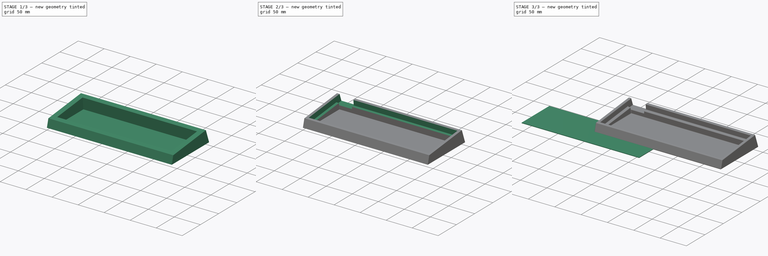
[diagram: build sequence overview — one tinted view per stage of 3, left to right]
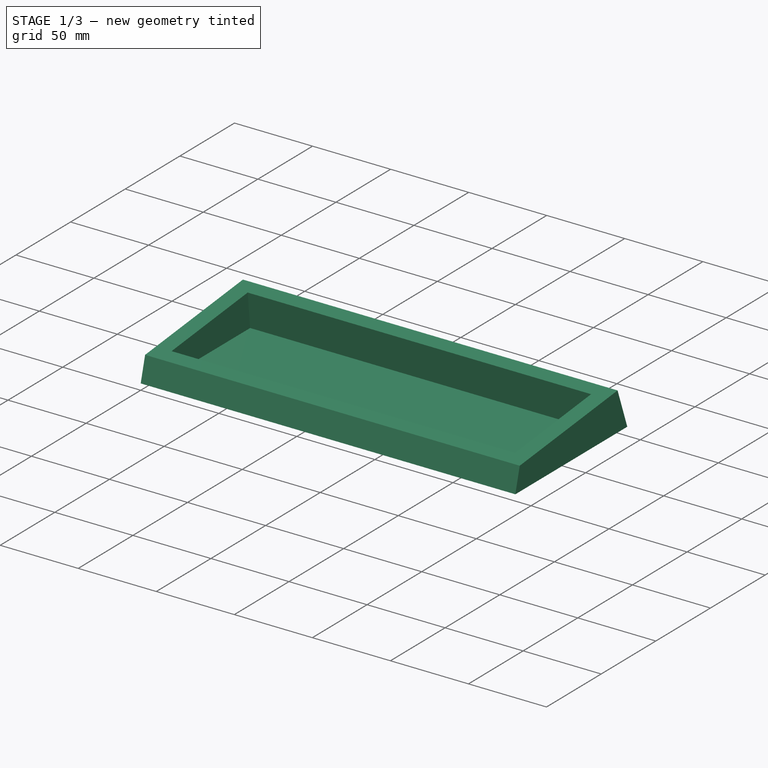
[diagram: stage 1 of 3 — iso view after this stage's code; geometry added in this stage tinted green]
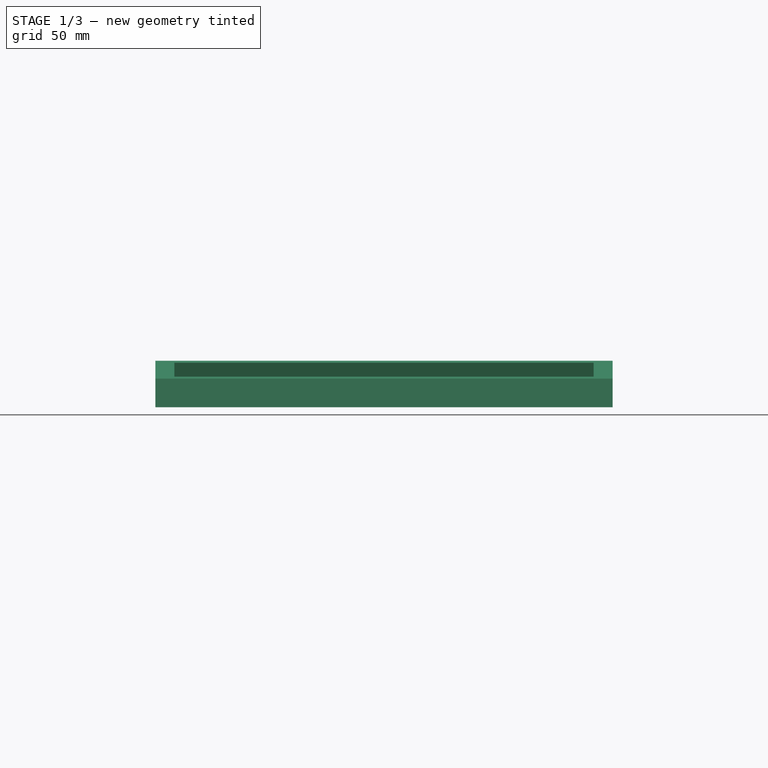
[diagram: stage 1 of 3 — front view after this stage's code; geometry added in this stage tinted green]
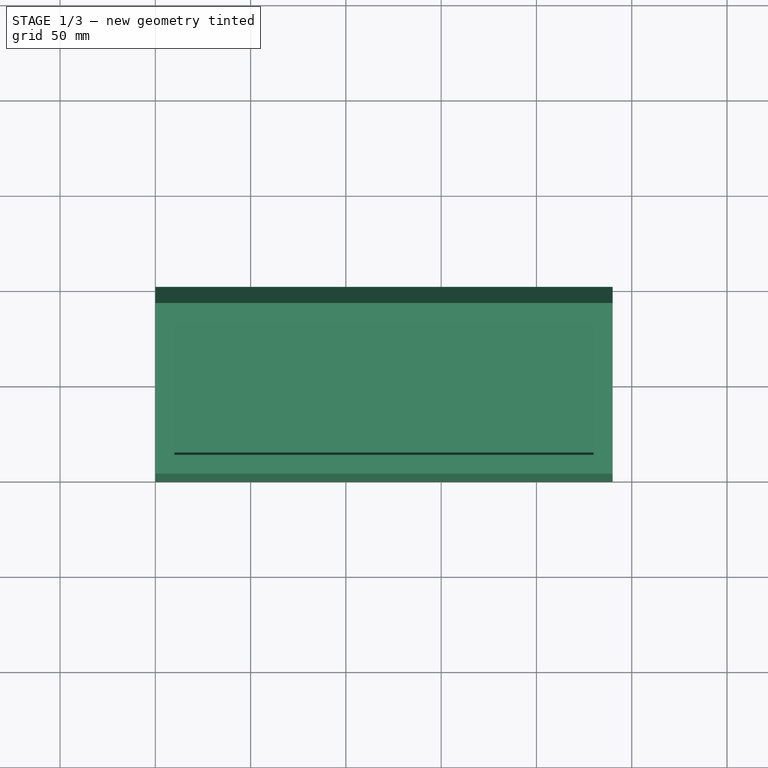
[diagram: stage 1 of 3 — top view after this stage's code; geometry added in this stage tinted green]
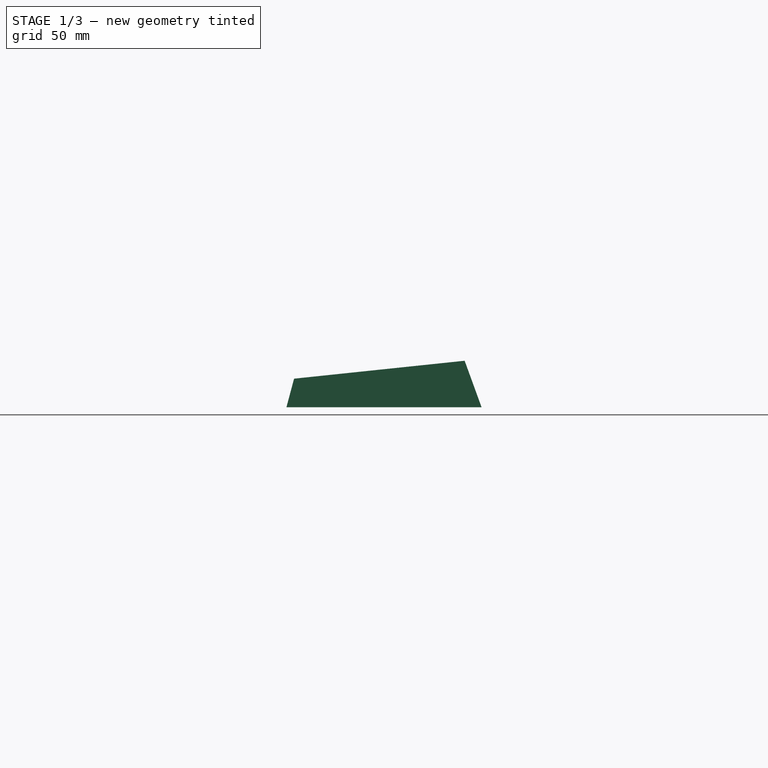
[diagram: stage 1 of 3 — right view after this stage's code; geometry added in this stage tinted green]
FCSTD DOCUMENT  (FreeCAD 0.20R)
Label: ppp
License: All rights reserved
LicenseURL: http://en.wikipedia.org/wiki/All_rights_reserved
objects: Sketcher::SketchObject×5, PartDesign::Pocket×3, PartDesign::Pad×2, PartDesign::Body×2, PartDesign::Fillet×1
note: 19 computed .brp shape members not serialized (recipe doc carries the construction recipe); baked Part::Feature solids carry a one-line shape summary decoded from their .brp

FEATURE [PartDesign::Body] Body  label="PCB"
  Group = -> [Sketch,Pad]
  Origin = -> Origin
  Tip = -> Pad
FEATURE [Sketcher::SketchObject] Sketch001
  FullyConstrained = true
  MapMode = 5
  Placement = pos=(0,0,0) rot=(0.57735,0.57735,0.57735;2.0944rad)
  Support = -> [YZ_Plane001]
  sketch-geometry (4):
    g0: LineSegment StartX=0 StartY=0 StartZ=0 EndX=4.01924 EndY=15 EndZ=0
    g1: LineSegment StartX=4.01924 StartY=15 StartZ=0 EndX=93.5262 EndY=24.4076 EndZ=0
    g2: LineSegment StartX=93.5262 StartY=24.4076 StartZ=0 EndX=102.41 EndY=0 EndZ=0
    g3: LineSegment StartX=102.41 StartY=0 StartZ=0 EndX=0 EndY=0 EndZ=0
  constraints (11):
    c: Coincident(g0,g1)
    c: Coincident(g1,g2)
    c: PointOnObject(g2,g-1)
    c: Coincident(g2,g3)
    c: Coincident(g3,g0)
    c: Coincident(g0,g-1)
    c: Angle(g3,g0) = 1.309
    c: Angle(g-1,g1) = 0.10472
    c: Angle(g2,g3) = 1.22173
    c: DistanceY(g0,g0) = 15
    c: Distance(g1) = 90
FEATURE [PartDesign::Pad] Pad001
  Direction = (1,-2e-16,3e-16)
  Length = 240
  Length2 = 10
  Placement = pos=(0,0,0) rot=(0.57735,0.57735,0.57735;2.0944rad)
  Profile = -> Sketch001
  ReferenceAxis = -> Sketch001 [N_Axis]
  Type = 0
FEATURE [Sketcher::SketchObject] Sketch002
  ExternalGeometry = -> [Pad001]
  FullyConstrained = true
  MapMode = 5
  Placement = pos=(-4.6e-15,-1.51542,14.4183) rot=(0.052264,0.052264,-0.997265;1.57353rad)
  Support = -> [Pad001]
  sketch-geometry (10):
    g0: LineSegment StartX=-85.5651 StartY=10 StartZ=0 EndX=-15.5651 EndY=10 EndZ=0
    g1: LineSegment StartX=-15.5651 StartY=10 StartZ=0 EndX=-15.5651 EndY=230 EndZ=0
    g2: LineSegment StartX=-15.5651 StartY=230 StartZ=0 EndX=-85.5651 EndY=230 EndZ=0
    g3: LineSegment StartX=-85.5651 StartY=230 StartZ=0 EndX=-85.5651 EndY=10 EndZ=0
    g4: LineSegment StartX=-85.5651 StartY=10 StartZ=0 EndX=-15.5651 EndY=230 EndZ=0
    g5: LineSegment StartX=-85.5651 StartY=230 StartZ=0 EndX=-15.5651 EndY=10 EndZ=0
    g6: GeomPoint X=-50.5651 Y=120 Z=0
    g7: LineSegment StartX=-95.5651 StartY=1.26e-14 StartZ=0 EndX=-5.56515 EndY=240 EndZ=0
    g8: LineSegment StartX=-95.5651 StartY=240 StartZ=0 EndX=-5.56515 EndY=0 EndZ=0
    g9: GeomPoint X=-50.5651 Y=120 Z=0
  constraints (23):
    c: Coincident(g0,g1)
    c: Coincident(g1,g2)
    c: Coincident(g2,g3)
    c: Coincident(g3,g0)
    c: Horizontal(g0)
    c: Horizontal(g2)
    c: Vertical(g1)
    c: Vertical(g3)
    c: DistanceY(g3,g3) = 220
    c: DistanceX(g0,g0) = 70
    c: Coincident(g4,g0)
    c: Coincident(g4,g1)
    c: Coincident(g5,g2)
    c: Coincident(g5,g0)
    c: PointOnObject(g6,g4)
    c: PointOnObject(g6,g5)
    c: Coincident(g7,g-3)
    c: Coincident(g7,g-4)
    c: Coincident(g8,g-3)
    c: Coincident(g8,g-4)
    c: PointOnObject(g9,g7)
    c: PointOnObject(g9,g8)
    c: Coincident(g6,g9)
FEATURE [PartDesign::Pocket] Pocket
  BaseFeature = -> Pad001
  Direction = (4e-16,0.104528,-0.994522)
  Length = 0
  Length2 = 5
  Offset = -2
  Placement = pos=(0,0,0) rot=(0.57735,0.57735,0.57735;2.0944rad)
  Profile = -> Sketch002
  ReferenceAxis = -> Sketch002 [N_Axis]
  Type = 3
  UpToFace = -> Pad001 [Face4]
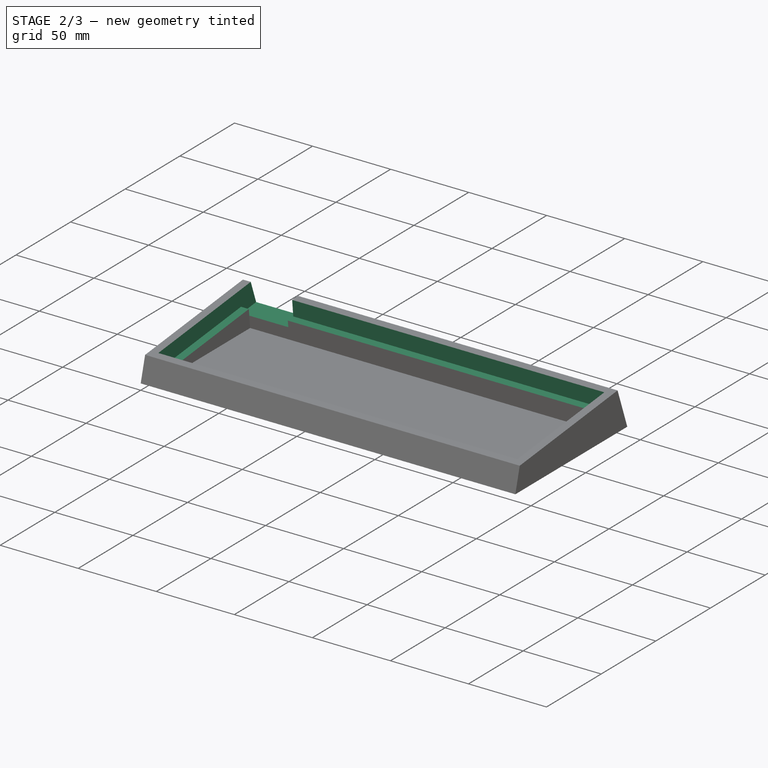
[diagram: stage 2 of 3 — iso view after this stage's code; geometry added in this stage tinted green]
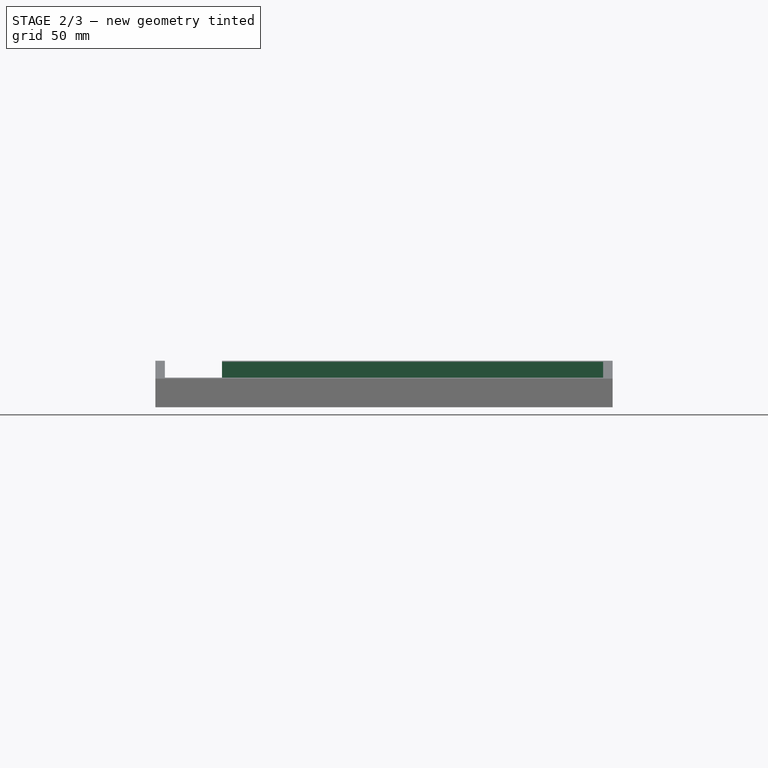
[diagram: stage 2 of 3 — front view after this stage's code; geometry added in this stage tinted green]
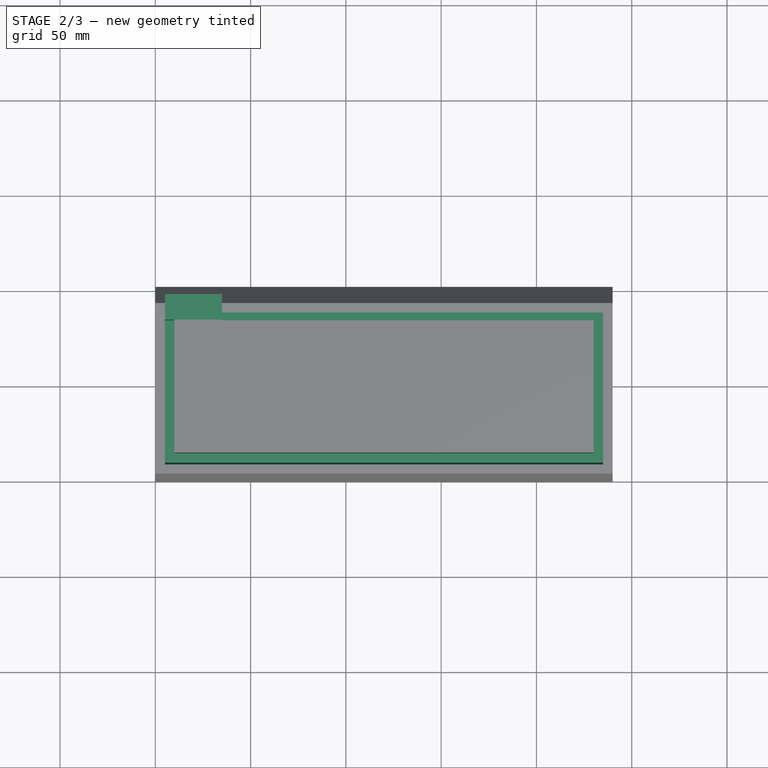
[diagram: stage 2 of 3 — top view after this stage's code; geometry added in this stage tinted green]
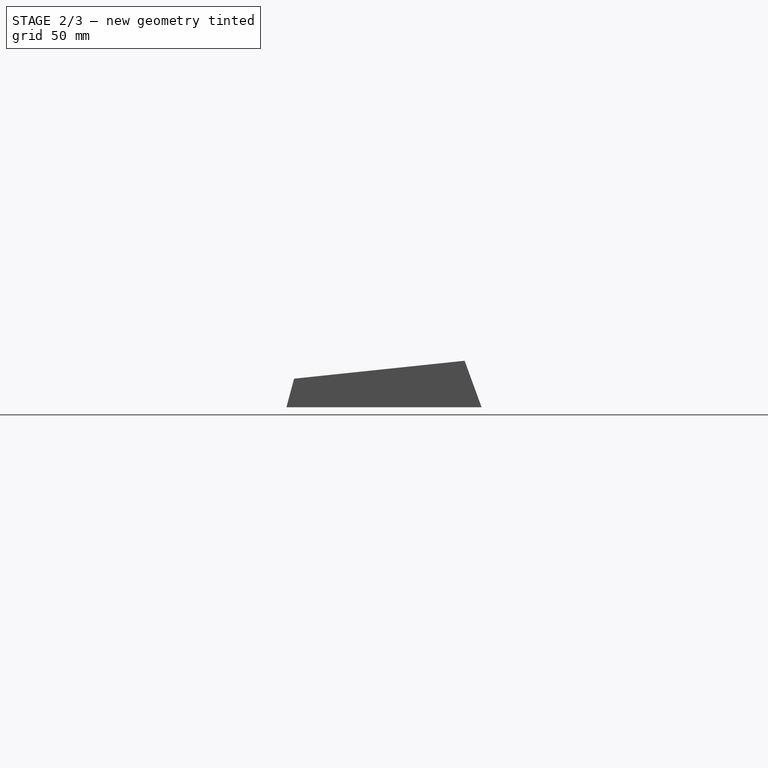
[diagram: stage 2 of 3 — right view after this stage's code; geometry added in this stage tinted green]
FEATURE [Sketcher::SketchObject] Sketch003
  ExternalGeometry = -> [Pocket]
  FullyConstrained = true
  MapMode = 5
  Placement = pos=(-4.6e-15,-1.51542,14.4183) rot=(0.052264,0.052264,-0.997265;1.57353rad)
  Support = -> [Pocket]
  sketch-geometry (10):
    g0: LineSegment StartX=-90.5651 StartY=5 StartZ=0 EndX=-10.5651 EndY=5 EndZ=0
    g1: LineSegment StartX=-10.5651 StartY=5 StartZ=0 EndX=-10.5651 EndY=235 EndZ=0
    g2: LineSegment StartX=-10.5651 StartY=235 StartZ=0 EndX=-90.5651 EndY=235 EndZ=0
    g3: LineSegment StartX=-90.5651 StartY=235 StartZ=0 EndX=-90.5651 EndY=5 EndZ=0
    g4: LineSegment StartX=-90.5651 StartY=5 StartZ=0 EndX=-10.5651 EndY=235 EndZ=0
    g5: LineSegment StartX=-10.5651 StartY=5 StartZ=0 EndX=-90.5651 EndY=235 EndZ=0
    g6: GeomPoint X=-50.5651 Y=120 Z=0
    g7: LineSegment StartX=-95.5651 StartY=240 StartZ=0 EndX=-5.56515 EndY=0 EndZ=0
    g8: LineSegment StartX=-95.5651 StartY=1.26e-14 StartZ=0 EndX=-5.56515 EndY=240 EndZ=0
    g9: GeomPoint X=-50.5651 Y=120 Z=0
  constraints (23):
    c: Coincident(g0,g1)
    c: Coincident(g1,g2)
    c: Coincident(g2,g3)
    c: Coincident(g3,g0)
    c: Horizontal(g0)
    c: Horizontal(g2)
    c: Vertical(g1)
    c: Vertical(g3)
    c: Coincident(g4,g0)
    c: Coincident(g4,g1)
    c: Coincident(g5,g0)
    c: Coincident(g5,g2)
    c: PointOnObject(g6,g4)
    c: PointOnObject(g6,g5)
    c: Coincident(g7,g-3)
    c: Coincident(g7,g-4)
    c: Coincident(g8,g-3)
    c: Coincident(g8,g-4)
    c: PointOnObject(g9,g8)
    c: PointOnObject(g9,g7)
    c: Coincident(g9,g6)
    c: DistanceY(g3,g3) = 230
    c: DistanceX(g2,g2) = 80
FEATURE [PartDesign::Pocket] Pocket001
  BaseFeature = -> Pocket
  Direction = (3e-16,0.104528,-0.994522)
  Length = 10
  Length2 = 5
  Placement = pos=(0,0,0) rot=(0.57735,0.57735,0.57735;2.0944rad)
  Profile = -> Sketch003
  ReferenceAxis = -> Sketch003 [N_Axis]
  Type = 0
FEATURE [Sketcher::SketchObject] Sketch004
  ExternalGeometry = -> [Pocket001]
  FullyConstrained = true
  MapMode = 5
  Placement = pos=(-4.8e-15,-1.51542,14.4183) rot=(0.052264,0.052264,-0.997265;1.57353rad)
  Support = -> [Pocket001]
  sketch-geometry (4):
    g0: LineSegment StartX=-101.849 StartY=5 StartZ=0 EndX=-85.5651 EndY=5 EndZ=0
    g1: LineSegment StartX=-85.5651 StartY=5 StartZ=0 EndX=-85.5651 EndY=35 EndZ=0
    g2: LineSegment StartX=-85.5651 StartY=35 StartZ=0 EndX=-101.849 EndY=35 EndZ=0
    g3: LineSegment StartX=-101.849 StartY=35 StartZ=0 EndX=-101.849 EndY=5 EndZ=0
  constraints (12):
    c: Coincident(g0,g1)
    c: Coincident(g1,g2)
    c: Coincident(g2,g3)
    c: Coincident(g3,g0)
    c: Horizontal(g0)
    c: Horizontal(g2)
    c: Vertical(g1)
    c: Vertical(g3)
    c: PointOnObject(g0,g-3)
    c: PointOnObject(g1,g-4)
    c: PointOnObject(g-5,g0)
    c: DistanceY(g1,g1) = 30
FEATURE [PartDesign::Pocket] Pocket002
  BaseFeature = -> Pocket001
  Direction = (3e-16,0.104528,-0.994522)
  Length = 14
  Length2 = 5
  Placement = pos=(0,0,0) rot=(0.57735,0.57735,0.57735;2.0944rad)
  Profile = -> Sketch004
  ReferenceAxis = -> Sketch004 [N_Axis]
  Type = 0
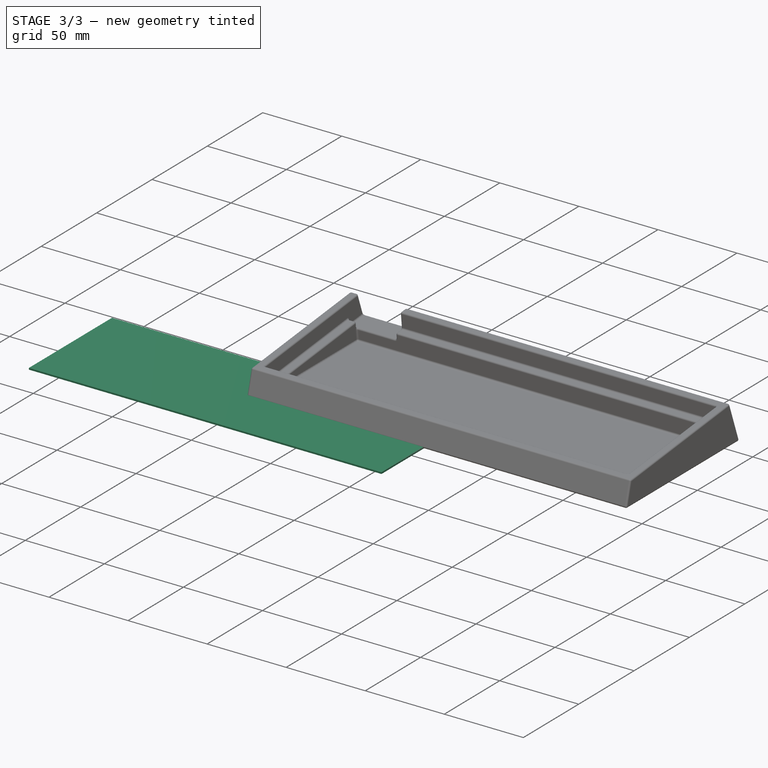
[diagram: stage 3 of 3 — iso view after this stage's code; geometry added in this stage tinted green]
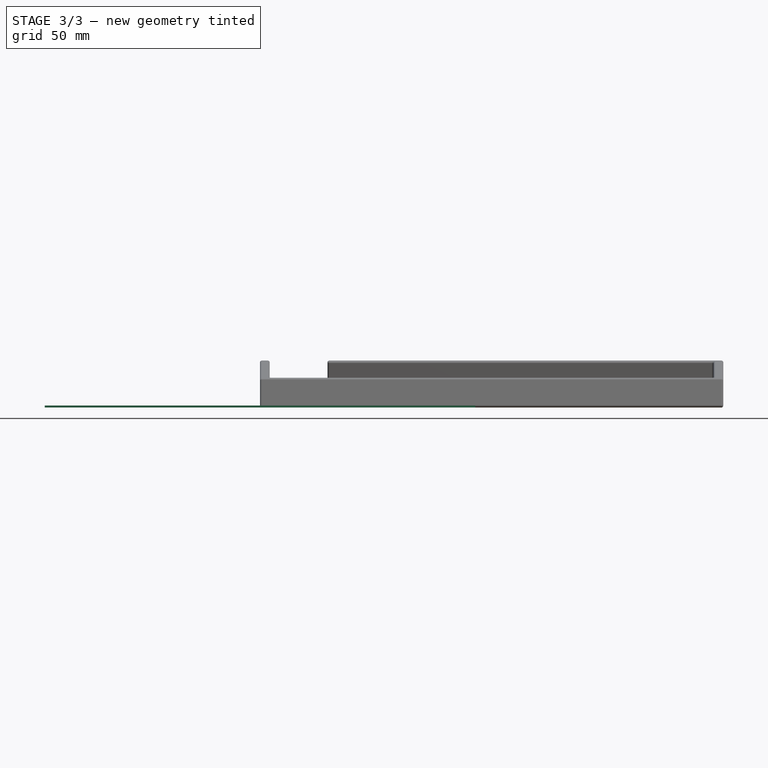
[diagram: stage 3 of 3 — front view after this stage's code; geometry added in this stage tinted green]
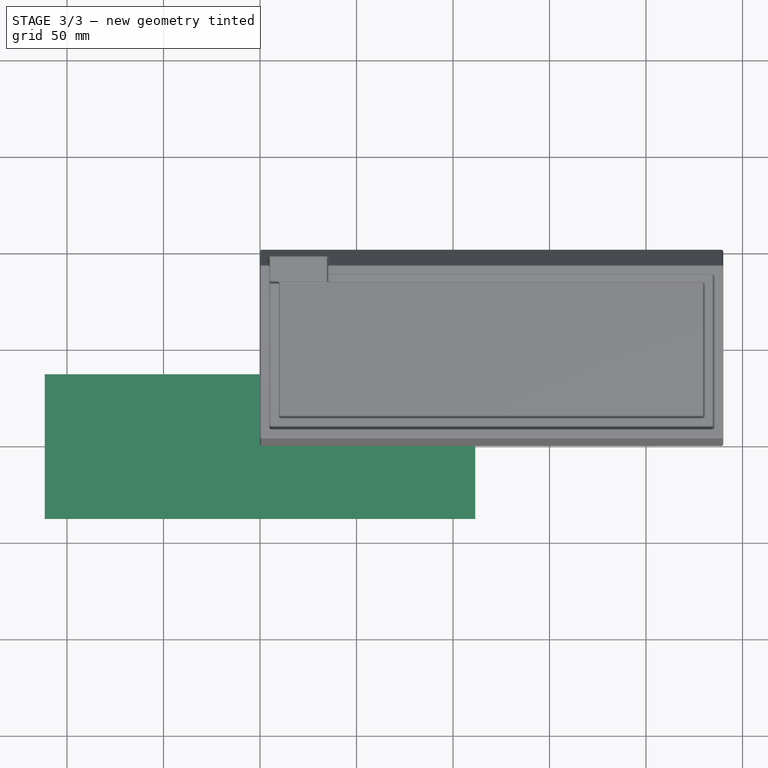
[diagram: stage 3 of 3 — top view after this stage's code; geometry added in this stage tinted green]
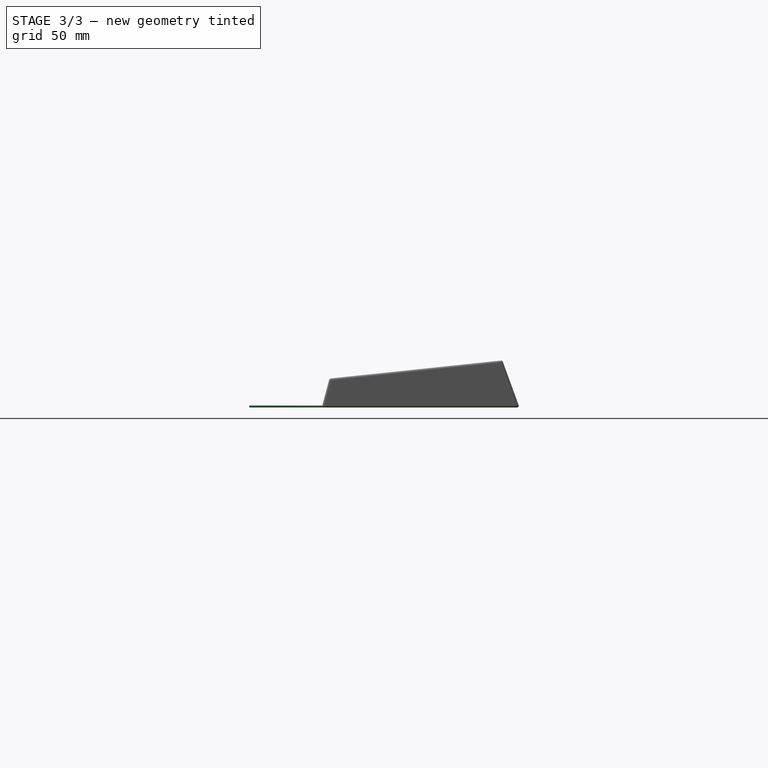
[diagram: stage 3 of 3 — right view after this stage's code; geometry added in this stage tinted green]
FEATURE [Sketcher::SketchObject] Sketch
  FullyConstrained = true
  MapMode = 5
  Support = -> [XY_Plane]
  sketch-geometry (4):
    g0: LineSegment StartX=-111.5 StartY=37.5 StartZ=0 EndX=111.5 EndY=37.5 EndZ=0
    g1: LineSegment StartX=111.5 StartY=37.5 StartZ=0 EndX=111.5 EndY=-37.5 EndZ=0
    g2: LineSegment StartX=111.5 StartY=-37.5 StartZ=0 EndX=-111.5 EndY=-37.5 EndZ=0
    g3: LineSegment StartX=-111.5 StartY=-37.5 StartZ=0 EndX=-111.5 EndY=37.5 EndZ=0
  constraints (11):
    c: Coincident(g0,g1)
    c: Coincident(g1,g2)
    c: Coincident(g2,g3)
    c: Coincident(g3,g0)
    c: Horizontal(g0)
    c: Horizontal(g2)
    c: Vertical(g1)
    c: Vertical(g3)
    c: DistanceX(g0,g0) = 223
    c: DistanceY(g3,g3) = 75
    c: Symmetric(g1,g0,g-1)
FEATURE [PartDesign::Pad] Pad
  Direction = (0,0,1)
  Length = 1
  Length2 = 10
  Profile = -> Sketch
  ReferenceAxis = -> Sketch [N_Axis]
  Type = 0
FEATURE [PartDesign::Fillet] Fillet
  Base = -> Pocket002 [Edge1,Edge2,Edge3,Edge4,Edge5,Edge6,Edge7,Edge8,Edge9,Edge10,Edge11,Edge12,Edge13,Edge14,Edge15,Edge16,Edge17,Edge18,Edge19,Edge20,Edge21,Edge22,Edge23,Edge24,Edge25,Edge26,Edge27,Edge28,Edge29,Edge30,Edge31,Edge32,Edge33,Edge34,Edge35,Edge36,Edge37,Edge38,Edge39,Edge40,+15 more]
  BaseFeature = -> Pocket002
  Placement = pos=(0,0,0) rot=(0.57735,0.57735,0.57735;2.0944rad)
  Radius = 1
  SupportTransform = false
  UseAllEdges = true
FEATURE [PartDesign::Body] Body001  label="Case"
  Group = -> [Sketch001,Pad001,Sketch002,Pocket,Sketch003,Pocket001,Sketch004,Pocket002,Fillet]
  Origin = -> Origin001
  Tip = -> Fillet
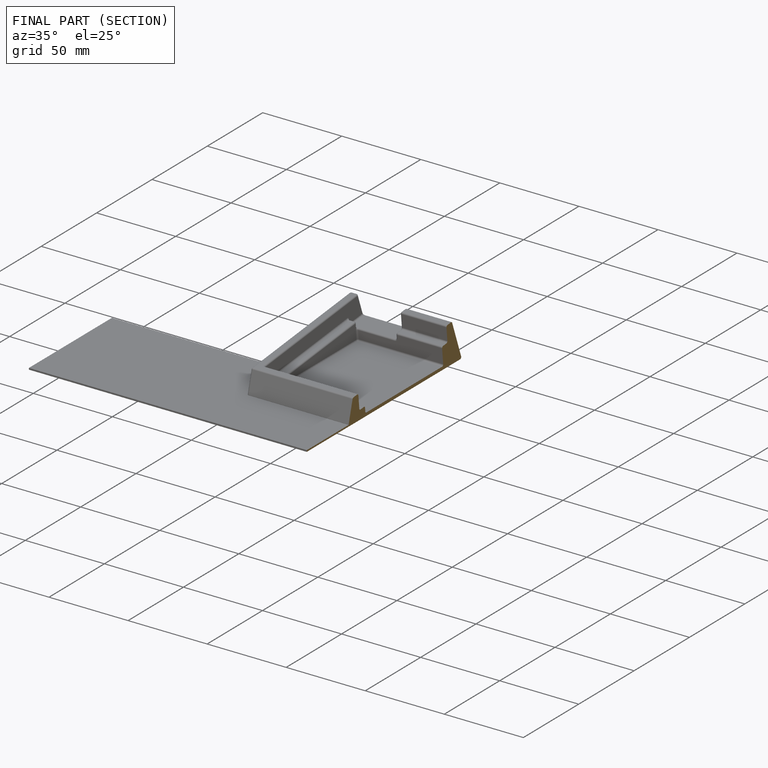
[diagram: finished part — half-section view (interior)]
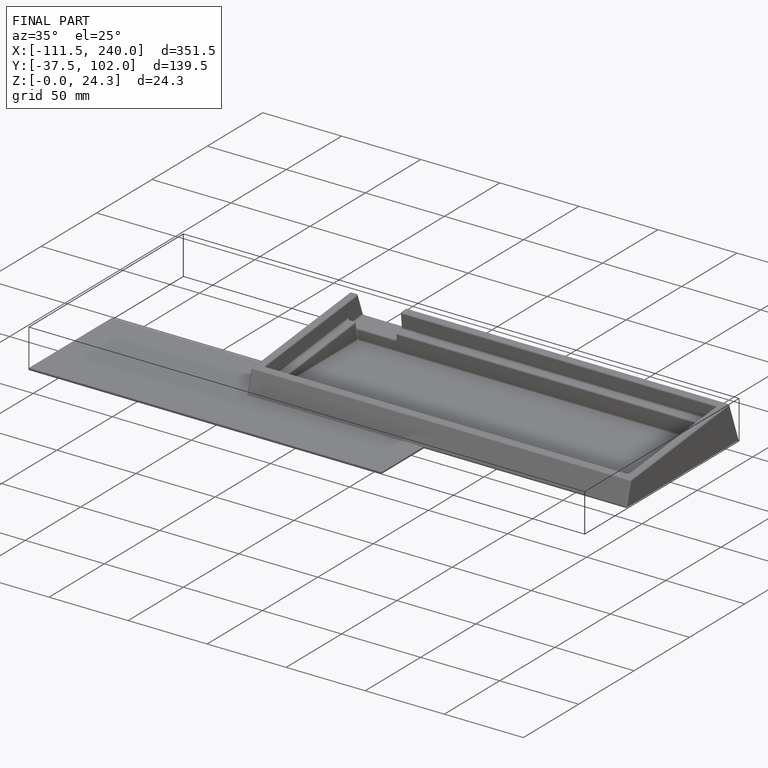
[diagram: finished part — iso view with bounding-box wireframe]
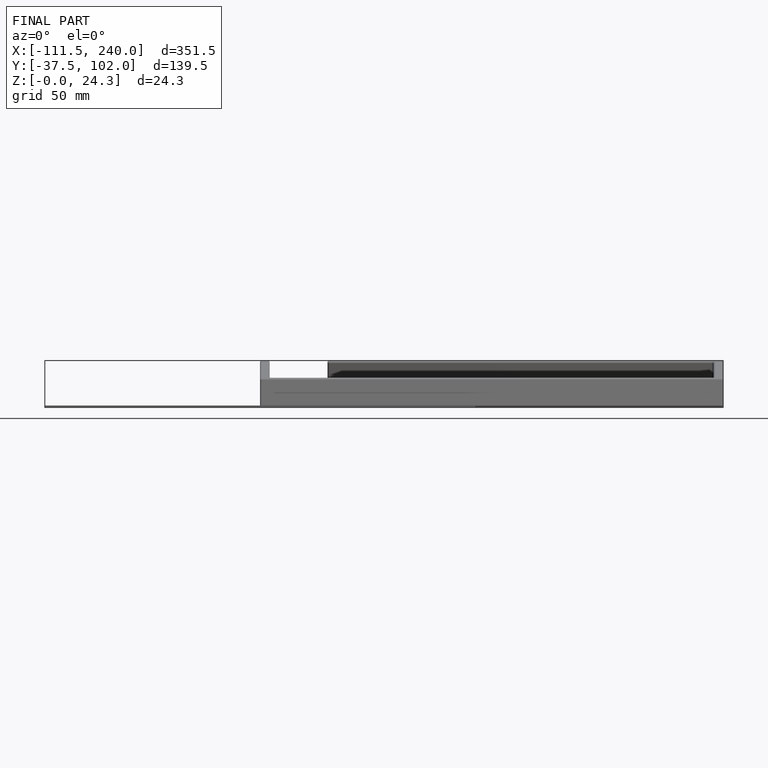
[diagram: finished part — front view with bounding-box wireframe]
